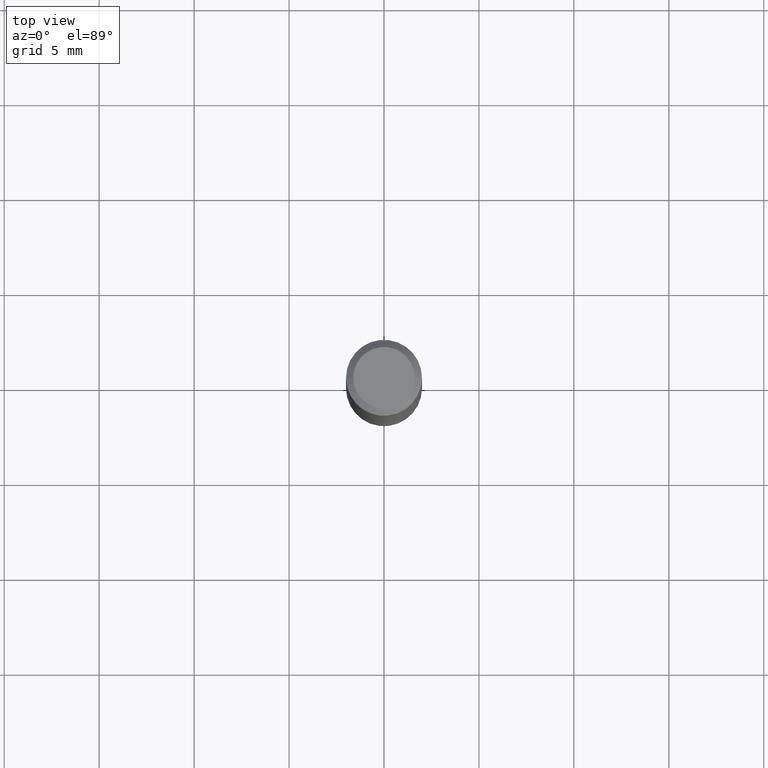
[diagram: clean part render]
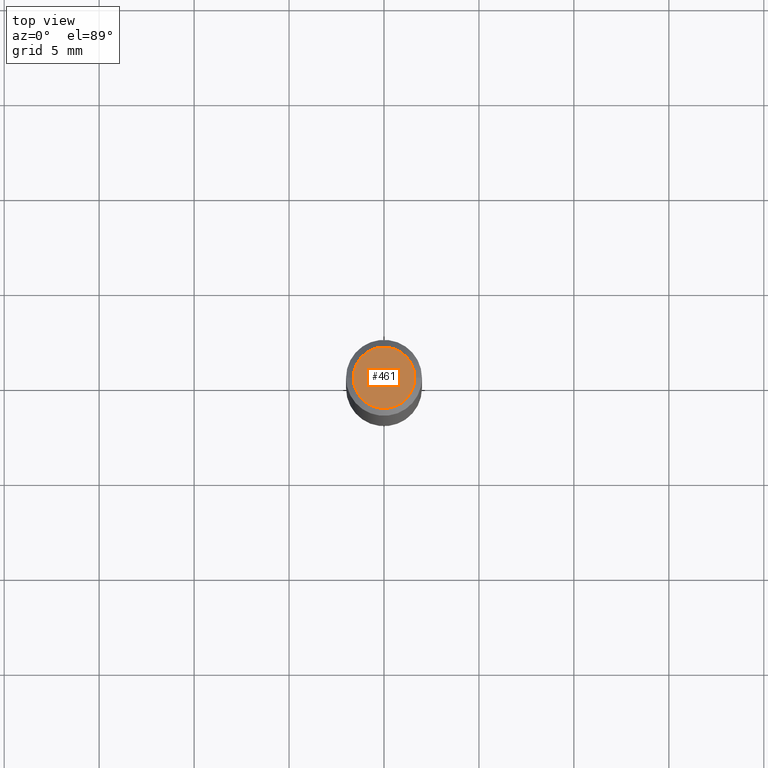
[diagram: same view with one face highlighted and labeled with its STEP entity id]
A machine part, top view. The second image highlights one B-rep face of the part: STEP entity #461.
In plain terms, the highlighted planar face has unit normal (0, -0, -1).
Its self-contained STEP definition (entity closure, byte-faithful):
#15 = DIRECTION ( 'NONE',  ( 1.000000000000000000, -6.982962677686265922E-15, 4.852736867747365646E-29 ) ) ;
#33 = EDGE_CURVE ( 'NONE', #116, #38, #34, .T. ) ;
#34 = CIRCLE ( 'NONE', #49, 0.06375000000000000111 ) ;
#38 = VERTEX_POINT ( 'NONE', #90 ) ;
#49 = AXIS2_PLACEMENT_3D ( 'NONE', #363, #364, #15 ) ;
#90 = CARTESIAN_POINT ( 'NONE',  ( -0.06375000000000000111, 4.713499807438232199E-16, 2.075856847527766866E-16 ) ) ;
#109 = ORIENTED_EDGE ( 'NONE', *, *, #169, .T. ) ;
#116 = VERTEX_POINT ( 'NONE', #216 ) ;
#128 = DIRECTION ( 'NONE',  ( 1.000000000000000000, -6.982962677686265922E-15, 4.852736867747365646E-29 ) ) ;
#157 = AXIS2_PLACEMENT_3D ( 'NONE', #230, #420, #128 ) ;
#166 = CARTESIAN_POINT ( 'NONE',  ( 4.451638707024993845E-16, 0.06375000000000000111, -1.187890929748605601E-16 ) ) ;
#169 = EDGE_CURVE ( 'NONE', #38, #116, #366, .T. ) ;
#176 = ORIENTED_EDGE ( 'NONE', *, *, #33, .T. ) ;
#196 = PLANE ( 'NONE',  #367 ) ;
#216 = CARTESIAN_POINT ( 'NONE',  ( 0.06375000000000000111, -5.149965923825448321E-16, 2.075856847527832686E-16 ) ) ;
#230 = CARTESIAN_POINT ( 'NONE',  ( -5.076443166735047805E-45, 7.247815445253071091E-31, 2.075856847527799160E-16 ) ) ;
#281 = EDGE_LOOP ( 'NONE', ( #109, #176 ) ) ;
#314 = DIRECTION ( 'NONE',  ( 2.438088387897960049E-29, -3.491481338843145188E-15, -1.000000000000000000 ) ) ;
#363 = CARTESIAN_POINT ( 'NONE',  ( -5.076443166735047805E-45, 7.247815445253071091E-31, 2.075856847527799160E-16 ) ) ;
#364 = DIRECTION ( 'NONE',  ( -2.445468806185136597E-29, 3.491481338843145583E-15, 1.000000000000000000 ) ) ;
#366 = CIRCLE ( 'NONE', #157, 0.06375000000000000111 ) ;
#367 = AXIS2_PLACEMENT_3D ( 'NONE', #166, #314, #455 ) ;
#378 = FACE_OUTER_BOUND ( 'NONE', #281, .T. ) ;
#420 = DIRECTION ( 'NONE',  ( -2.445468806185136597E-29, 3.491481338843145583E-15, 1.000000000000000000 ) ) ;
#455 = DIRECTION ( 'NONE',  ( -1.000000000000000000, 6.982962677686265922E-15, -4.876176775795935793E-29 ) ) ;
#461 = ADVANCED_FACE ( 'NONE', ( #378 ), #196, .F. ) ;